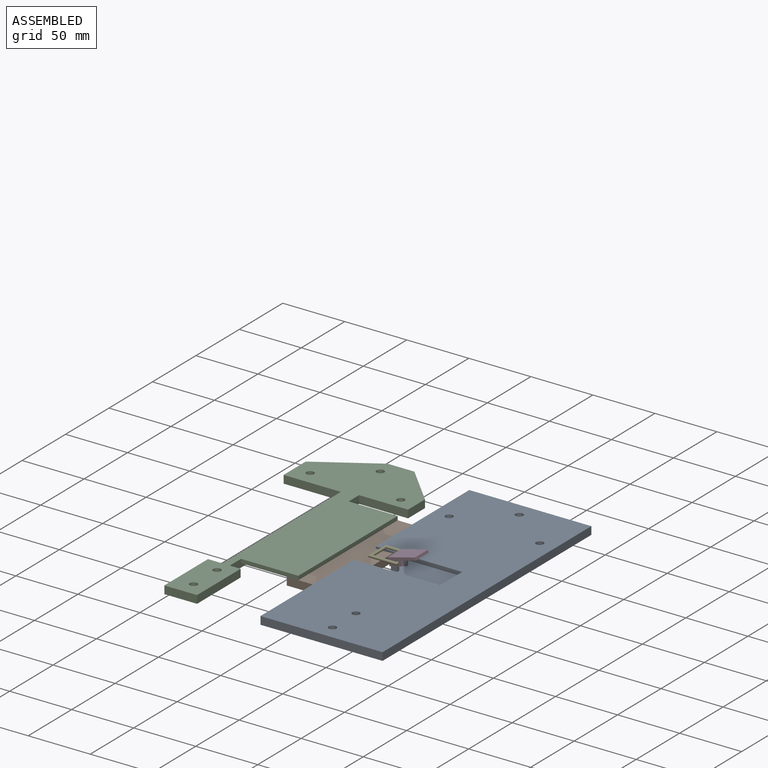
[diagram: assembled view]
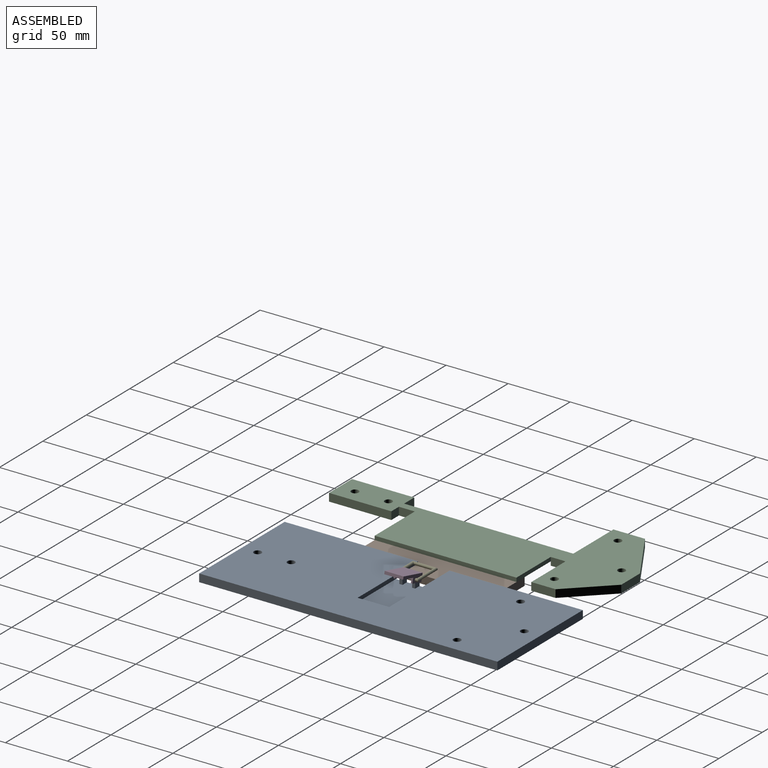
[diagram: assembled view, second angle]
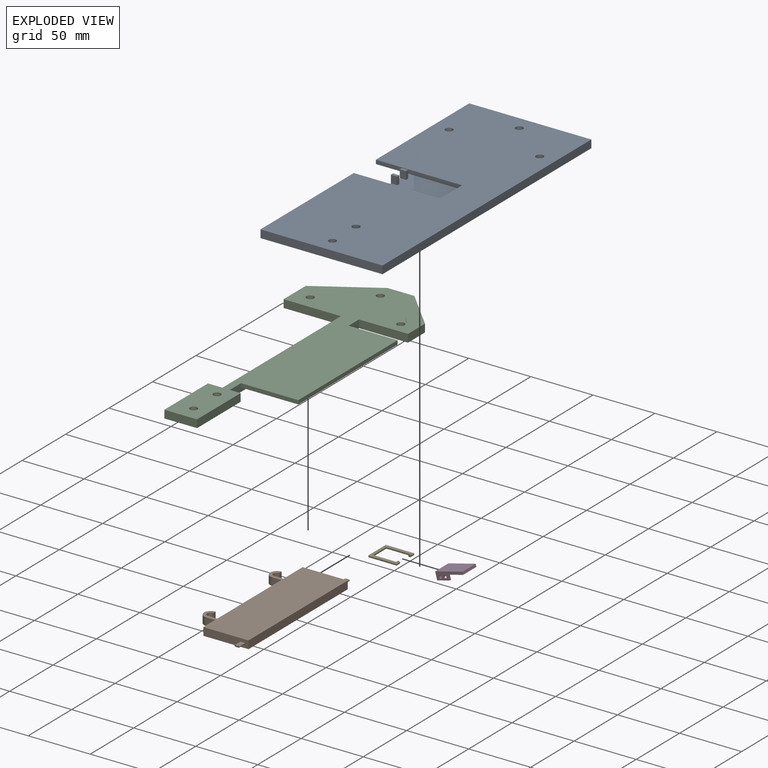
[diagram: exploded view]
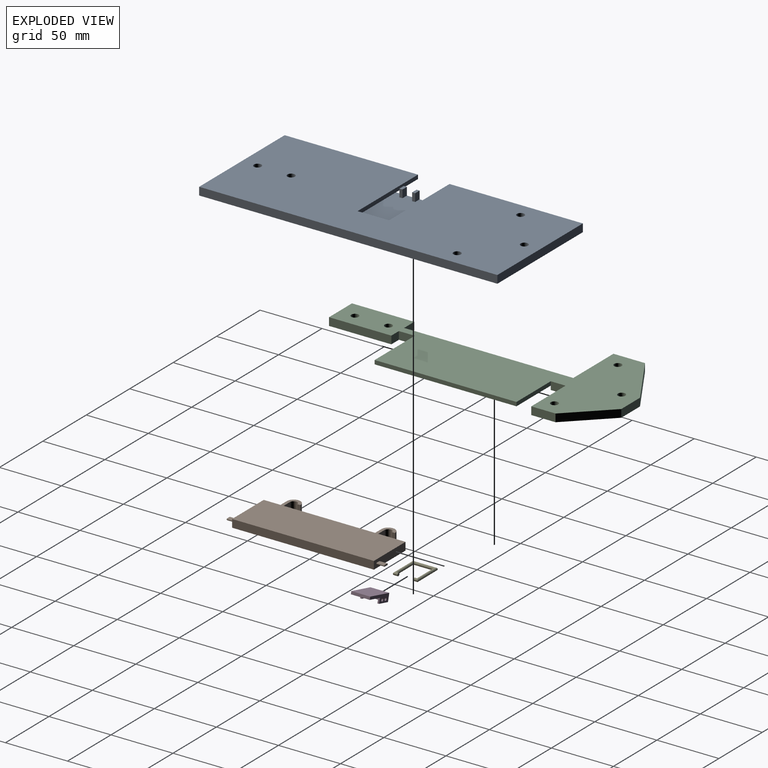
[diagram: exploded view, second angle]
ASSEMBLY  parts=5 mates=6
PART A: 39 faces, bbox 98.4x240.4x9.5 mm
  f0: plane 107.48x6.35mm, normal (-1,0,0), area 541.4mm2, adj f2,f4,f12,f13,f15,f29
  f1: plane 44.45x25.4mm, normal (0,0,-1), area 1129mm2, adj f3,f14,f16,f28
  f2: plane 240.36x98.43mm, normal (0,0,1), area 21748.4mm2, adj f0,f3,f4,f5,f6,f7,f8,f9
  f3: plane 107.48x6.35mm, normal (-1,0,0), area 541.4mm2, adj f1,f2,f11,f12,f14,f28
  f4: plane 98.43x6.35mm, normal (0,-1,0), area 625mm2, adj f0,f2,f5,f12
  f5: plane 240.36x6.35mm, normal (1,0,0), area 1526.3mm2, adj f2,f4,f11,f12
  f6: cylinder r=3mm len=6.35mm, axis (0,0,-1), area 119.7mm2, adj f2,f12
  f7: cylinder r=3mm len=6.35mm, axis (0,0,-1), area 119.7mm2, adj f2,f12
  f8: cylinder r=3mm len=6.35mm, axis (0,0,-1), area 119.7mm2, adj f2,f12
  f9: cylinder r=3mm len=6.35mm, axis (0,0,-1), area 119.7mm2, adj f2,f12
  f10: cylinder r=3mm len=6.35mm, axis (0,0,-1), area 119.7mm2, adj f2,f12
  f11: plane 98.43x6.35mm, normal (0,1,0), area 625mm2, adj f2,f3,f5,f12
  f12: plane 240.36x98.43mm, normal (0,0,-1), area 20612.9mm2, adj f0,f3,f4,f5,f6,f7,f8,f9
  f13: plane 44.45x25.4mm, normal (0,0,-1), area 1129mm2, adj f0,f15,f16,f29
  f14: plane 25.4x3.18mm, normal (0,-1,0), area 63.2mm2, adj f1,f3,f12,f16,f22,f23,f24,f25
  f15: plane 25.4x3.18mm, normal (0,1,0), area 63.2mm2, adj f0,f12,f13,f16,f17,f18,f19,f20
  f16: plane 114.3x9.53mm, normal (-1,0,0), area 394.5mm2, adj f1,f12,f13,f14,f15,f27,f31,f33
  f17: plane 12.7x6.35mm, normal (0,0,-1), area 80.6mm2, adj f15,f18,f20,f21
  f18: cylinder r=0.64mm len=6.35mm, axis (0,1,0), area 12.7mm2, adj f15,f17,f19,f21
  f19: plane 12.7x6.35mm, normal (0,0,1), area 80.6mm2, adj f15,f18,f20,f21
  f20: cylinder r=0.64mm len=6.35mm, axis (0,1,0), area 12.7mm2, adj f15,f17,f19,f21
  f21: plane 13.97x1.27mm, normal (0,1,0), area 17.4mm2, adj f17,f18,f19,f20
  f22: plane 12.7x6.35mm, normal (0,0,-1), area 80.6mm2, adj f14,f23,f25,f26
  f23: cylinder r=0.64mm len=6.35mm, axis (0,-1,0), area 12.7mm2, adj f14,f22,f24,f26
  f24: plane 12.7x6.35mm, normal (0,0,1), area 80.6mm2, adj f14,f23,f25,f26
  f25: cylinder r=0.64mm len=6.35mm, axis (0,-1,0), area 12.7mm2, adj f14,f22,f24,f26
  f26: plane 13.97x1.27mm, normal (0,-1,0), area 17.4mm2, adj f22,f23,f24,f25
  f27: plane 44.2x25.4mm, normal (0,0,1), area 1097.3mm2, adj f16,f28,f29,f30,f31,f32,f33,f35
  f28: plane 69.6x3.18mm, normal (0,-1,0), area 221mm2, adj f1,f2,f3,f27,f30
  f29: plane 69.6x3.18mm, normal (0,1,0), area 221mm2, adj f0,f2,f13,f27,f30
  f30: plane 25.4x3.18mm, normal (-1,0,0), area 80.6mm2, adj f2,f27,f28,f29
  f31: plane 6.35x5.08mm, normal (0,-1,0), area 32.3mm2, adj f16,f27,f32,f34
  f32: plane 6.35x2.48mm, normal (1,0,0), area 15.8mm2, adj f27,f31,f33,f34
  f33: plane 6.35x5.08mm, normal (0,1,0), area 32.3mm2, adj f16,f27,f32,f34
  f34: plane 5.08x2.48mm, normal (0,0,1), area 12.6mm2, adj f16,f31,f32,f33
  f35: plane 6.35x5.08mm, normal (0,-1,0), area 32.3mm2, adj f16,f27,f36,f38
  f36: plane 6.35x2.48mm, normal (1,0,0), area 15.8mm2, adj f27,f35,f37,f38
  f37: plane 6.35x5.08mm, normal (0,1,0), area 32.3mm2, adj f16,f27,f36,f38
  f38: plane 5.08x2.48mm, normal (0,0,1), area 12.6mm2, adj f16,f35,f36,f37
PART B: 28 faces, bbox 49.1x127x6.4 mm
  f0: plane 36.42x6.35mm, normal (0,1,0), area 226.5mm2, adj f1,f15,f16,f17,f23,f24,f25,f26
  f1: plane 21.97x6.35mm, normal (-1,0,0), area 139.5mm2, adj f0,f2,f16,f17
  f2: plane 7.26x6.35mm, normal (0,1,0), area 46.1mm2, adj f1,f3,f16,f17
  f3: cylinder r=2.92mm len=6.35mm, axis (0,0,1), area 57.9mm2, adj f2,f4,f16,f17
  f4: plane 6.35x2.54mm, normal (1,0.02,0), area 16.1mm2, adj f3,f5,f16,f17
  f5: cylinder r=5.46mm len=10.92mm, axis (0,0,1), area 108.3mm2, adj f4,f6,f16,f17
  f6: plane 7.26x6.35mm, normal (0,-1,0), area 46.1mm2, adj f5,f7,f16,f17
  f7: plane 73.66x6.35mm, normal (-1,0,0), area 467.7mm2, adj f6,f8,f16,f17
  f8: plane 7.26x6.35mm, normal (0,1,0), area 46.1mm2, adj f7,f9,f16,f17
  f9: cylinder r=2.92mm len=6.35mm, axis (0,0,1), area 58.3mm2, adj f8,f10,f16,f17
  f10: plane 6.35x2.54mm, normal (1,0,0), area 16.1mm2, adj f9,f11,f16,f17
  f11: cylinder r=5.46mm len=10.92mm, axis (0,0,1), area 108.9mm2, adj f10,f12,f16,f17
  f12: plane 7.26x6.35mm, normal (0,-1,0), area 46.1mm2, adj f11,f13,f16,f17
  f13: plane 13.59x6.35mm, normal (-1,0,0), area 86.3mm2, adj f12,f14,f16,f17
  f14: plane 36.42x6.35mm, normal (0,-1,0), area 226.5mm2, adj f13,f15,f16,f17,f18,f19,f20,f21
  f15: plane 114.3x6.35mm, normal (1,0,0), area 725.8mm2, adj f0,f14,f16,f17
  f16: plane 114.3x49.14mm, normal (0,0,-1), area 4266.2mm2, adj f0,f1,f2,f3,f4,f5,f6,f7
  f17: plane 114.3x49.14mm, normal (0,0,1), area 4266.2mm2, adj f0,f1,f2,f3,f4,f5,f6,f7
  f18: plane 6.35x2.76mm, normal (0,0,1), area 17.5mm2, adj f14,f19,f21,f22
  f19: cylinder r=0.64mm len=6.35mm, axis (0,1,0), area 12.7mm2, adj f14,f18,f20,f22
  f20: plane 6.35x2.76mm, normal (0,0,-1), area 17.5mm2, adj f14,f19,f21,f22
  f21: cylinder r=0.64mm len=6.35mm, axis (0,1,0), area 12.7mm2, adj f14,f18,f20,f22
  f22: plane 4.03x1.27mm, normal (0,-1,0), area 4.8mm2, adj f18,f19,f20,f21
  f23: plane 6.35x2.76mm, normal (0,0,1), area 17.5mm2, adj f0,f24,f26,f27
  f24: cylinder r=0.64mm len=6.35mm, axis (0,-1,0), area 12.7mm2, adj f0,f23,f25,f27
  f25: plane 6.35x2.76mm, normal (0,0,-1), area 17.5mm2, adj f0,f24,f26,f27
  f26: cylinder r=0.64mm len=6.35mm, axis (0,-1,0), area 12.7mm2, adj f0,f23,f25,f27
  f27: plane 4.03x1.27mm, normal (0,1,0), area 4.8mm2, adj f23,f24,f25,f26
PART C: 31 faces, bbox 98.4x240.4x6.4 mm
  f0: plane 19.55x6.35mm, normal (1,0,0), area 124.1mm2, adj f6,f7,f26,f30
  f1: plane 114.3x3.18mm, normal (1,0,0), area 362.9mm2, adj f6,f13,f25,f27
  f2: plane 25.44x6.35mm, normal (-1,0,0), area 161.6mm2, adj f6,f7,f20,f29
  f3: plane 21.57x6.35mm, normal (0,1,0), area 137mm2, adj f6,f7,f29,f30
  f4: plane 6.75x3.18mm, normal (0,-1,0), area 21.4mm2, adj f7,f13,f14,f28
  f5: plane 26.37x6.35mm, normal (0,-1,0), area 167.4mm2, adj f6,f7,f19,f23
  f6: plane 240.36x98.43mm, normal (0,0,1), area 11394.1mm2, adj f0,f1,f2,f3,f5,f8,f9,f10
  f7: plane 240.36x98.43mm, normal (0,0,-1), area 6112mm2, adj f0,f2,f3,f4,f5,f8,f9,f10
  f8: cylinder r=3mm len=6.35mm, axis (0,0,-1), area 119.7mm2, adj f6,f7
  f9: cylinder r=3mm len=6.35mm, axis (0,0,-1), area 119.7mm2, adj f6,f7
  f10: cylinder r=3mm len=6.35mm, axis (0,0,-1), area 119.7mm2, adj f6,f7
  f11: cylinder r=3mm len=6.35mm, axis (0,0,-1), area 119.7mm2, adj f6,f7
  f12: cylinder r=3mm len=6.35mm, axis (0,0,-1), area 119.7mm2, adj f6,f7
  f13: plane 114.3x46.21mm, normal (0,0,-1), area 5225.5mm2, adj f1,f4,f14,f15,f16,f25,f27
  f14: plane 127.11x6.35mm, normal (1,0,0), area 444.3mm2, adj f4,f6,f7,f13,f24,f25
  f15: cylinder r=3mm len=6mm, axis (0,0,-1), area 59.8mm2, adj f13,f17
  f16: cylinder r=3mm len=6mm, axis (0,0,-1), area 59.8mm2, adj f13,f18
  f17: plane 6x6mm, normal (0,0,-1), area 28.3mm2, adj f15
  f18: plane 6x6mm, normal (0,0,-1), area 28.3mm2, adj f16
  f19: plane 50.22x6.35mm, normal (-1,0,0), area 318.9mm2, adj f5,f6,f7,f22
  f20: plane 46.21x6.35mm, normal (0,-1,0), area 293.4mm2, adj f2,f6,f7,f21
  f21: plane 136.37x6.35mm, normal (-1,0,0), area 865.9mm2, adj f6,f7,f20,f22
  f22: plane 11.67x6.35mm, normal (0,1,0), area 74.1mm2, adj f6,f7,f19,f21
  f23: plane 50.22x6.35mm, normal (1,0,0), area 318.9mm2, adj f5,f6,f7,f24
  f24: plane 8.7x6.35mm, normal (0,1,0), area 55.2mm2, adj f6,f7,f14,f23
  f25: plane 46.21x3.18mm, normal (0,-1,0), area 146.7mm2, adj f1,f6,f13,f14
  f26: plane 39.46x6.35mm, normal (0,-1,0), area 250.6mm2, adj f0,f6,f7,f28
  f27: plane 39.46x3.18mm, normal (0,1,0), area 125.3mm2, adj f1,f6,f13,f28
  f28: plane 11.97x6.35mm, normal (1,0,0), area 76mm2, adj f4,f6,f7,f26,f27
  f29: plane 46.21x28.34mm, normal (-0.52,0.85,0), area 344.2mm2, adj f2,f3,f6,f7
  f30: plane 31.52x30.64mm, normal (0.72,0.7,0), area 279.1mm2, adj f0,f3,f6,f7
PART D: 18 faces, bbox 22.7x15.2x6.4 mm
  f0: plane 15.24x10.67mm, normal (0,0,-1), area 43.2mm2, adj f1,f3,f4,f7,f8,f10,f11,f13
  f1: plane 4.11x1.27mm, normal (1,0,0), area 5.2mm2, adj f0,f5,f8,f11
  f2: plane 22.7x15.24mm, normal (0,0,1), area 345.9mm2, adj f3,f6,f7,f8
  f3: plane 15.24x6.35mm, normal (-1,0,0), area 96.8mm2, adj f0,f2,f7,f8
  f4: plane 4.11x1.27mm, normal (1,0,0), area 5.2mm2, adj f0,f5,f7,f10
  f5: plane 15.24x12.03mm, normal (0,0,-1), area 46.7mm2, adj f1,f4,f6,f7,f8,f9,f10,f11
  f6: plane 15.24x2.24mm, normal (1,0,0), area 34.1mm2, adj f2,f5,f7,f8
  f7: plane 22.7x6.35mm, normal (0,-1,0), area 86.2mm2, adj f0,f2,f3,f4,f5,f6,f16,f17
  f8: plane 22.7x6.35mm, normal (0,1,0), area 86.2mm2, adj f0,f1,f2,f3,f5,f6,f14,f15
  f9: plane 12.7x1.6mm, normal (-1,0,0), area 20.3mm2, adj f5,f10,f11,f12
  f10: plane 20.16x5.72mm, normal (0,1,0), area 62.5mm2, adj f0,f4,f5,f9,f12,f13,f16,f17
  f11: plane 20.16x5.72mm, normal (0,-1,0), area 62.5mm2, adj f0,f1,f5,f9,f12,f13,f14,f15
  f12: plane 20.16x12.7mm, normal (0,0,-1), area 256mm2, adj f9,f10,f11,f13
  f13: plane 12.7x5.72mm, normal (1,0,0), area 72.6mm2, adj f0,f10,f11,f12
  f14: cylinder r=1.16mm len=2.31mm, axis (0,-1,0), area 9.2mm2, adj f8,f11
  f15: cylinder r=1.16mm len=2.31mm, axis (0,-1,0), area 9.2mm2, adj f8,f11
  f16: cylinder r=1.16mm len=2.31mm, axis (0,-1,0), area 9.2mm2, adj f7,f10
  f17: cylinder r=1.16mm len=2.31mm, axis (0,-1,0), area 9.2mm2, adj f7,f10
PART E: 7 faces, bbox 20.1x23x2.3 mm
  f0: plane 2.31x2.31mm, normal (1,0,0), area 4.2mm2, adj f2
  f1: plane 2.31x2.31mm, normal (-1,0,0), area 4.2mm2, adj f6
  f2: cylinder r=1.16mm len=3.7mm, axis (1,0,0), area 18.2mm2, adj f0,f3
  f3: cylinder r=1.16mm len=23.04mm, axis (0,-1,0), area 150.2mm2, adj f2,f4
  f4: cylinder r=1.16mm len=20.09mm, axis (-1,0,0), area 129.1mm2, adj f3,f5
  f5: cylinder r=1.16mm len=23.04mm, axis (0,1,0), area 150.2mm2, adj f4,f6
  f6: cylinder r=1.16mm len=3.7mm, axis (1,0,0), area 18.2mm2, adj f1,f5
PLACE A t=(-16.77,-11.02,11.93)mm fixed
PLACE B t=(-70.74,-11.02,13.52)mm
PLACE C t=(-128.77,-11.02,16.69)mm
PLACE D rot(axis=(0,-1,0),14.3deg) t=(-26.76,-11.02,25.15)mm
PLACE E rot(axis=(0,0,1),90deg) t=(-34.85,-11.02,22.4)mm
MATE revolute E.f2 <-> D.f14  axis (0,-1,0) through (-34.35,-4.67,22.4)mm
MATE cylindrical C.f16 <-> B.f3  axis (0,0,-1) through (-96.2,27.08,15.11)mm
MATE cylindrical C.f15 <-> B.f9  axis (0,0,-1) through (-96.2,-49.12,13.52)mm
MATE parallel B.f16 <-> A.f12  axis (0,0,-1) through (-71.37,-11.06,10.34)mm
MATE planar B.f20 <-> A.f19  axis (0,0,-1) through (-57.41,-71.35,12.88)mm
MATE planar B.f17 <-> C.f13  axis (0,0,1) through (-71.37,-11.06,16.69)mm
